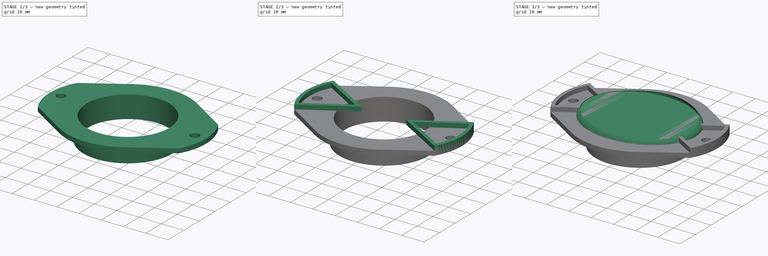
[diagram: build sequence overview — one tinted view per stage of 3, left to right]
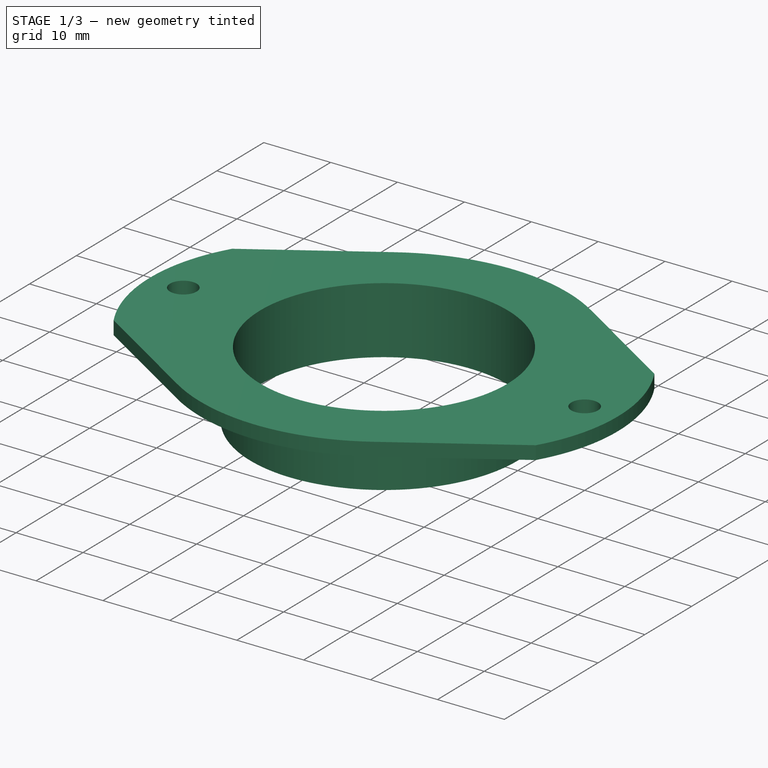
[diagram: stage 1 of 3 — iso view after this stage's code; geometry added in this stage tinted green]
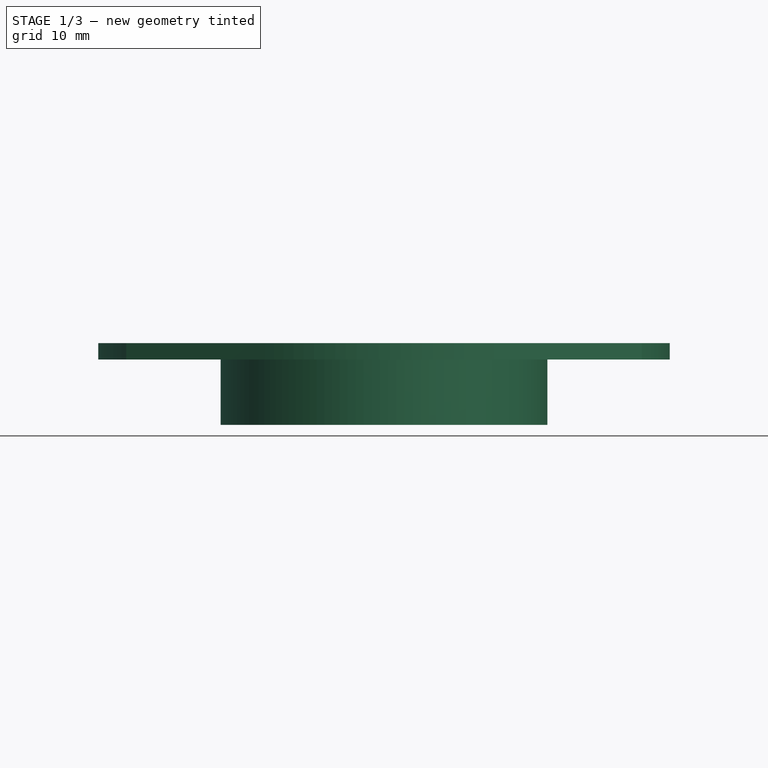
[diagram: stage 1 of 3 — front view after this stage's code; geometry added in this stage tinted green]
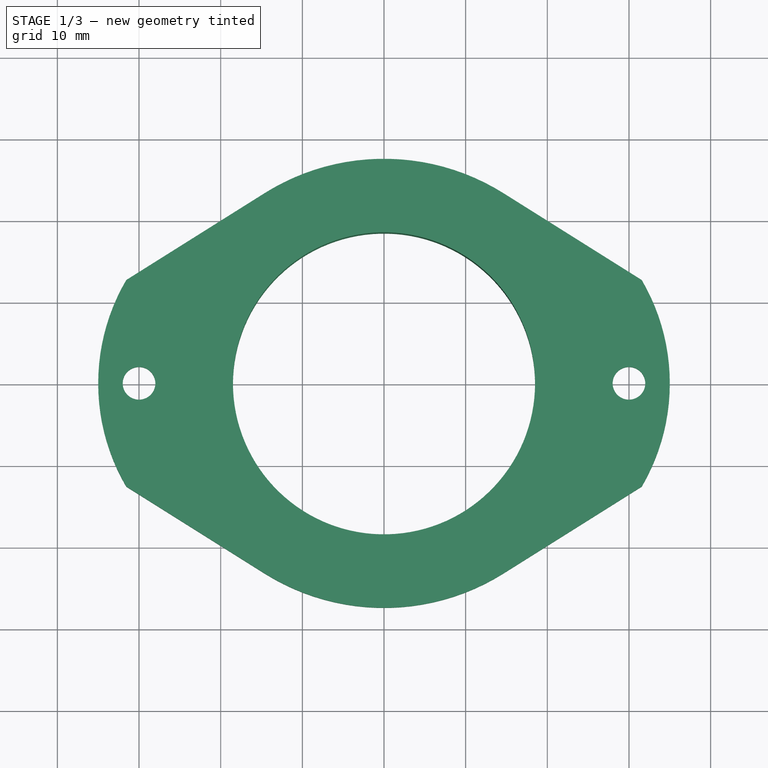
[diagram: stage 1 of 3 — top view after this stage's code; geometry added in this stage tinted green]
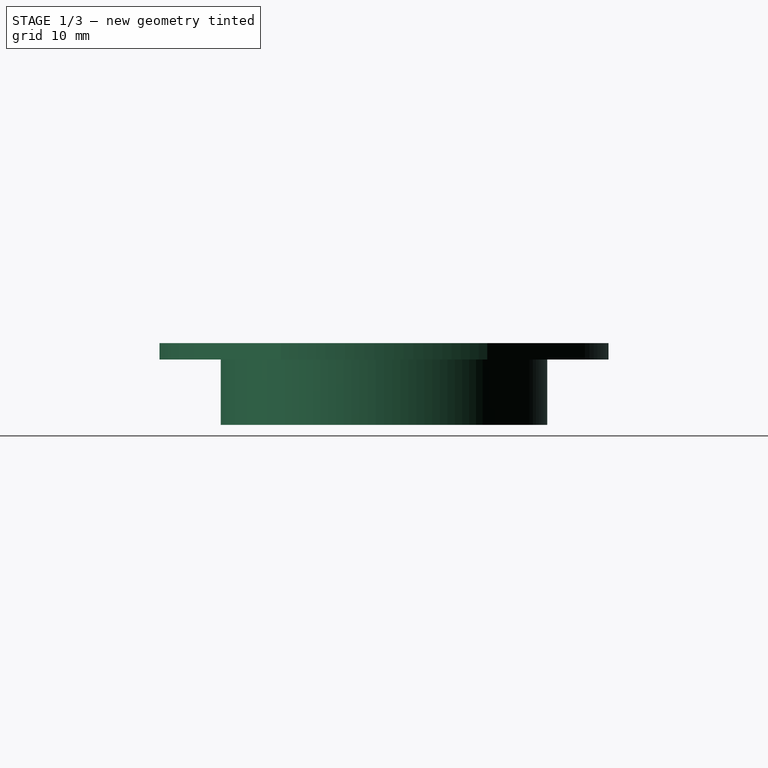
[diagram: stage 1 of 3 — right view after this stage's code; geometry added in this stage tinted green]
FCSTD DOCUMENT  (FreeCAD 1.2R20251216 (Git shallow))
Label: lesson15
License: All rights reserved
objects: Sketcher::SketchObject×3, PartDesign::Pad×3, App::Point×1, PartDesign::AdditiveEllipsoid×1, PartDesign::SubtractiveEllipsoid×1, PartDesign::Body×1
note: 22 computed .brp shape members not serialized (recipe doc carries the construction recipe); baked Part::Feature solids carry a one-line shape summary decoded from their .brp

FEATURE [App::Point] Origin001
  Role = Origin
FEATURE [Sketcher::SketchObject] Sketch
  ArcFitTolerance = 1e-06
  AttachmentSupport = -> [Origin]
  ExternalTypes = [0]
  FullyConstrained = true
  MakeInternals = false
  MapMode = 5
  sketch-geometry (2):
    g0: Circle CenterX=0 CenterY=0 CenterZ=0 NormalX=0 NormalY=0 NormalZ=1 AngleXU=0 Radius=20
    g1: Circle CenterX=0 CenterY=0 CenterZ=0 NormalX=0 NormalY=0 NormalZ=1 AngleXU=0 Radius=18.5
  constraints (4):
    c: Coincident(g0,g-1)
    c: Coincident(g1,g0)
    c: Diameter(g1) = 37
    c: Diameter(g0) = 40
FEATURE [PartDesign::Pad] Pad
  Direction = (0,0,1)
  Length = 8
  Length2 = 10
  Profile = -> Sketch
  ReferenceAxis = -> Sketch [N_Axis]
  Refine = true
  SideType = 0
  Suppressed = false
  Type = 0
  Type2 = 0
FEATURE [Sketcher::SketchObject] Sketch001
  ArcFitTolerance = 1e-06
  AttachmentSupport = -> [Pad]
  ExternalGeometry = -> [Pad]
  ExternalTypes = [0]
  FullyConstrained = true
  MakeInternals = false
  MapMode = 5
  Placement = pos=(0,0,8) rot=(0,0,1;0rad)
  sketch-geometry (13):
    g0: ArcOfCircle CenterX=-1.7e-15 CenterY=0 CenterZ=0 NormalX=0 NormalY=0 NormalZ=1 AngleXU=0 Radius=27.5 StartAngle=1.01002 EndAngle=2.13157
    g1: ArcOfCircle CenterX=0 CenterY=0 CenterZ=0 NormalX=0 NormalY=0 NormalZ=1 AngleXU=0 Radius=27.5 StartAngle=4.15162 EndAngle=5.27316
    g2: ArcOfCircle CenterX=10 CenterY=0 CenterZ=0 NormalX=0 NormalY=0 NormalZ=1 AngleXU=0 Radius=25 StartAngle=5.75258 EndAngle=6.81379
    g3: ArcOfCircle CenterX=-10 CenterY=0 CenterZ=0 NormalX=0 NormalY=0 NormalZ=1 AngleXU=0 Radius=25 StartAngle=2.61099 EndAngle=3.6722
    g4: GeomPoint X=-35 Y=0 Z=0
    g5: GeomPoint X=35 Y=0 Z=0
    g6: LineSegment StartX=-31.5625 StartY=12.6514 StartZ=0 EndX=-14.6256 EndY=23.2882 EndZ=0
    g7: LineSegment StartX=14.6256 StartY=23.2882 StartZ=0 EndX=31.5625 EndY=12.6514 EndZ=0
    g8: LineSegment StartX=31.5625 StartY=-12.6514 StartZ=0 EndX=14.6256 EndY=-23.2882 EndZ=0
    g9: LineSegment StartX=-14.6256 StartY=-23.2882 StartZ=0 EndX=-31.5625 EndY=-12.6514 EndZ=0
    g10: Circle CenterX=-1.7e-15 CenterY=0 CenterZ=0 NormalX=0 NormalY=0 NormalZ=1 AngleXU=0 Radius=18.5
    g11: Circle CenterX=-30 CenterY=0 CenterZ=0 NormalX=0 NormalY=0 NormalZ=1 AngleXU=0 Radius=2
    g12: Circle CenterX=30 CenterY=0 CenterZ=0 NormalX=0 NormalY=0 NormalZ=1 AngleXU=0 Radius=2
  constraints (35):
    c: PointOnObject(g3,g-1)
    c: PointOnObject(g2,g-1)
    c: Coincident(g-1,g1)
    c: PointOnObject(g0,g-1)
    c: PointOnObject(g4,g-1)
    c: PointOnObject(g4,g3)
    c: PointOnObject(g5,g2)
    c: DistanceX(g4,g5) = 70
    c: Coincident(g6,g3)
    c: Coincident(g7,g2)
    c: Coincident(g8,g2)
    c: Coincident(g8,g1)
    c: Coincident(g9,g1)
    c: Coincident(g9,g3)
    c: Distance(g6,g6) = 20
    c: Equal(g6,g7)
    c: Equal(g8,g6)
    c: Equal(g6,g9)
    c: Tangent(g6,g0) = 1.5708
    c: Tangent(g7,g0) = 1.5708
    c: Radius(g0) = 27.5
    c: Vertical(g3,g3)
    c: Vertical(g2,g2)
    c: Radius(g2) = 25
    c: Equal(g0,g1)
    c: Equal(g3,g2)
    c: Symmetric(g5,g4,g1)
    c: Horizontal(g1,g1)
    c: Coincident(g10,g0)
    c: Equal(g10,g-3)
    c: PointOnObject(g11,g-1)
    c: Diameter(g11) = 4
    c: Equal(g11,g12)
    c: Symmetric(g12,g11,g0)
    c: DistanceX(g12,g5) = 5
FEATURE [PartDesign::Pad] Pad001
  BaseFeature = -> Pad
  Direction = (0,0,1)
  Length = 2
  Length2 = 10
  Profile = -> Sketch001
  ReferenceAxis = -> Sketch001 [N_Axis]
  Refine = true
  SideType = 0
  Suppressed = false
  Type = 0
  Type2 = 0
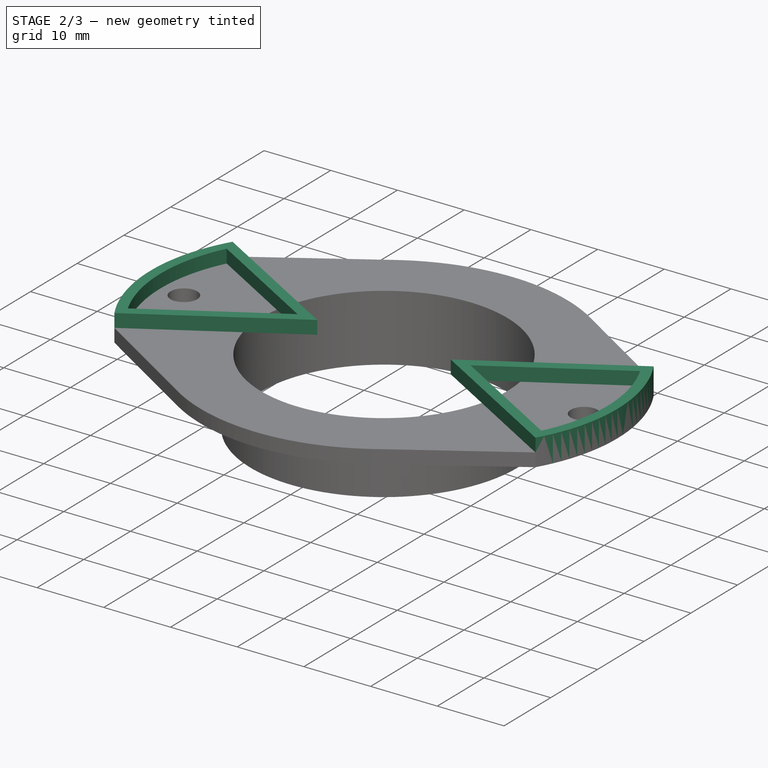
[diagram: stage 2 of 3 — iso view after this stage's code; geometry added in this stage tinted green]
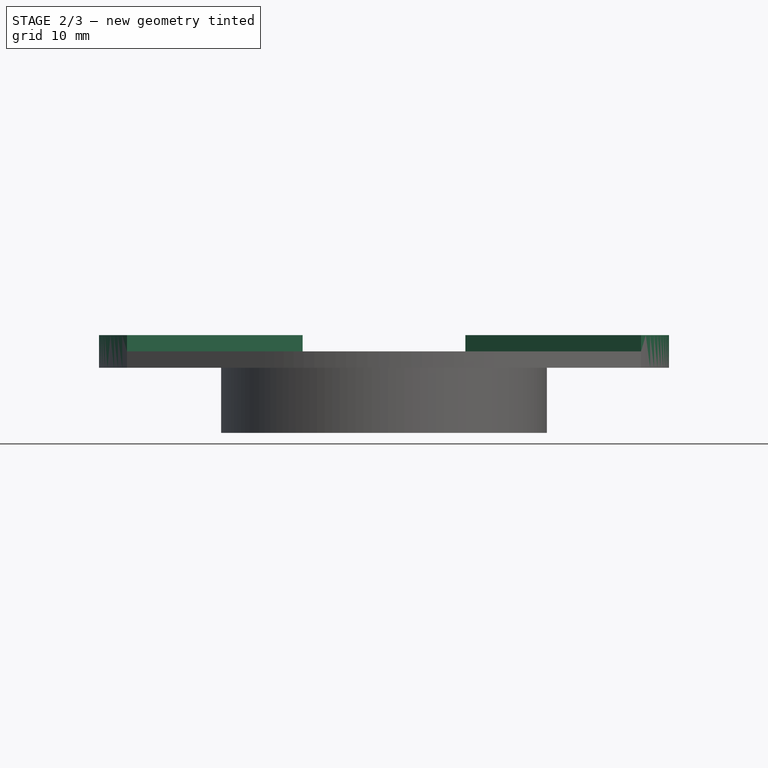
[diagram: stage 2 of 3 — front view after this stage's code; geometry added in this stage tinted green]
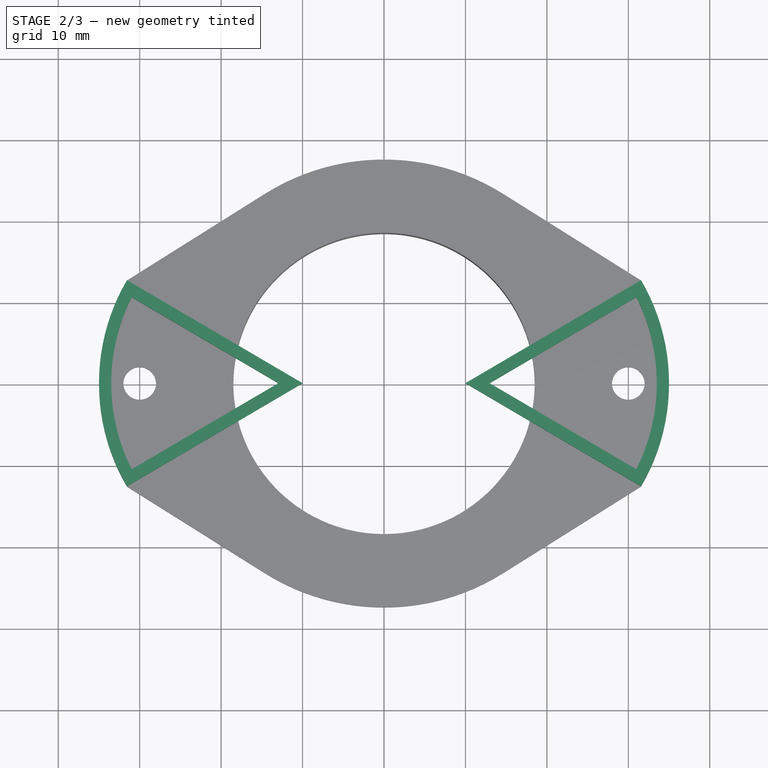
[diagram: stage 2 of 3 — top view after this stage's code; geometry added in this stage tinted green]
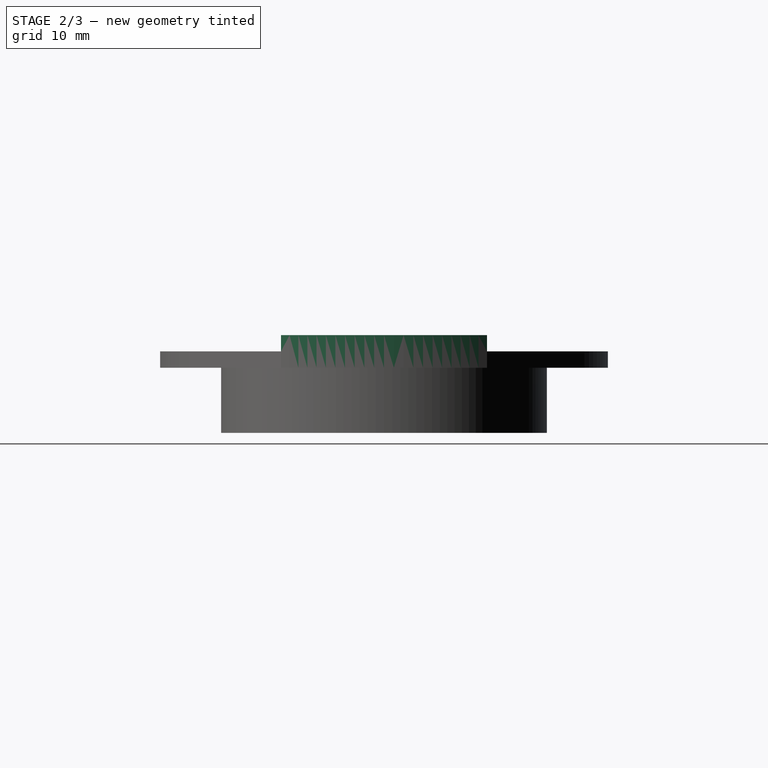
[diagram: stage 2 of 3 — right view after this stage's code; geometry added in this stage tinted green]
FEATURE [Sketcher::SketchObject] Sketch002
  ArcFitTolerance = 1e-06
  AttachmentSupport = -> [Pad001]
  ExternalGeometry = -> [Pad001]
  ExternalTypes = [0,0]
  FullyConstrained = false
  MakeInternals = false
  MapMode = 5
  Placement = pos=(0,0,10) rot=(0,0,1;0rad)
  sketch-geometry (19):
    g0: ArcOfCircle CenterX=-10 CenterY=7e-16 CenterZ=0 NormalX=0 NormalY=0 NormalZ=1 AngleXU=0 Radius=25 StartAngle=2.61099 EndAngle=3.6722
    g1: LineSegment StartX=-31.5625 StartY=12.6514 StartZ=0 EndX=-10 EndY=8e-16 EndZ=0
    g2: LineSegment StartX=-31.5625 StartY=-12.6514 StartZ=0 EndX=-10 EndY=9e-16 EndZ=0
    g3: LineSegment StartX=-30.9865 StartY=-10.5743 StartZ=0 EndX=-12.9641 EndY=7e-16 EndZ=0
    g4: LineSegment StartX=-30.9865 StartY=10.5743 StartZ=0 EndX=-12.9641 EndY=7e-16 EndZ=0
    g5: ArcOfCircle CenterX=-10 CenterY=7e-16 CenterZ=0 NormalX=0 NormalY=0 NormalZ=1 AngleXU=0 Radius=23.5 StartAngle=2.67486 EndAngle=3.60833
    g6: LineSegment [constr] StartX=-11.6437 StartY=0.774745 StartZ=0 EndX=-10.8846 EndY=-0.519005 EndZ=0
    g7: LineSegment [constr] StartX=-3.4094 StartY=-5.60605 StartZ=0 EndX=-2.65032 EndY=-4.3123 EndZ=0
    g8: LineSegment [constr] StartX=13.1714 StartY=-3.91634 StartZ=0 EndX=14.6504 EndY=-4.16631 EndZ=0
    g9: ArcOfCircle CenterX=10 CenterY=-9e-16 CenterZ=0 NormalX=0 NormalY=0 NormalZ=1 AngleXU=0 Radius=25 StartAngle=5.75258 EndAngle=6.81379
    g10: LineSegment StartX=31.5625 StartY=12.6514 StartZ=0 EndX=10 EndY=-2.5e-15 EndZ=0
    g11: LineSegment StartX=31.5625 StartY=-12.6514 StartZ=0 EndX=10 EndY=-2.3e-15 EndZ=0
    g12: LineSegment StartX=30.9865 StartY=-10.5743 StartZ=0 EndX=12.9641 EndY=-2.5e-15 EndZ=0
    g13: LineSegment StartX=30.9865 StartY=10.5743 StartZ=0 EndX=12.9641 EndY=-3.8e-15 EndZ=0
    g14: ArcOfCircle CenterX=10 CenterY=-9e-16 CenterZ=0 NormalX=0 NormalY=0 NormalZ=1 AngleXU=0 Radius=23.5 StartAngle=5.81645 EndAngle=6.74992
    g15: LineSegment [constr] StartX=13.3121 StartY=-0.204187 StartZ=0 EndX=12.553 EndY=-1.49794 EndZ=0
    g16: LineSegment [constr] StartX=5.6499 StartY=-4.29148 StartZ=0 EndX=4.89082 EndY=-2.99773 EndZ=0
    g17: LineSegment [constr] StartX=-13.4977 StartY=-0.331839 StartZ=0 EndX=-14.9975 EndY=-0.35302 EndZ=0
    g18: ArcOfCircle [constr] CenterX=10 CenterY=-3.2e-15 CenterZ=0 NormalX=0 NormalY=0 NormalZ=1 AngleXU=0 Radius=25 StartAngle=5.75258 EndAngle=6.81379
  constraints (53):
    c: Coincident(g0,g-3)
    c: Coincident(g0,g-3)
    c: Coincident(g1,g0)
    c: Coincident(g1,g-3)
    c: Coincident(g2,g0)
    c: Coincident(g2,g1)
    c: Equal(g0,g-3)
    c: Coincident(g3,g4)
    c: Coincident(g3,g5)
    c: Coincident(g4,g5)
    c: Perpendicular(g6,g3)
    c: PointOnObject(g6,g3)
    c: PointOnObject(g6,g2)
    c: Perpendicular(g7,g4)
    c: PointOnObject(g7,g4)
    c: PointOnObject(g7,g1)
    c: Perpendicular(g8,g5)
    c: PointOnObject(g8,g5)
    c: PointOnObject(g8,g0)
    c: Coincident(g5,g0)
    c: Parallel(g3,g2)
    c: Parallel(g4,g1)
    c: Equal(g7,g6)
    c: Equal(g8,g6)
    c: Distance(g6) = 1.5
    c: Coincident(g9,g18)
    c: Coincident(g9,g18)
    c: Coincident(g10,g9)
    c: Coincident(g10,g18)
    c: Coincident(g11,g9)
    c: Coincident(g11,g10)
    c: Equal(g9,g18)
    c: Coincident(g12,g13)
    c: Coincident(g12,g14)
    c: Coincident(g13,g14)
    c: Perpendicular(g15,g12)
    c: PointOnObject(g15,g12)
    c: PointOnObject(g15,g11)
    c: Perpendicular(g16,g13)
    c: PointOnObject(g16,g13)
    c: PointOnObject(g16,g10)
    c: Perpendicular(g17,g14)
    c: PointOnObject(g17,g14)
    c: PointOnObject(g17,g9)
    c: Coincident(g14,g9)
    c: Parallel(g12,g11)
    c: Parallel(g13,g10)
    c: Equal(g16,g15)
    c: Equal(g17,g15)
    c: Distance(g15) = 1.5
    c: Coincident(g9,g-4)
    c: Coincident(g9,g-4)
    c: Coincident(g9,g-4)
FEATURE [PartDesign::Pad] Pad002
  BaseFeature = -> Pad001
  Direction = (0,0,1)
  Length = 2
  Length2 = 10
  Profile = -> Sketch002
  ReferenceAxis = -> Sketch002 [N_Axis]
  Refine = true
  SideType = 0
  Suppressed = false
  Type = 0
  Type2 = 0
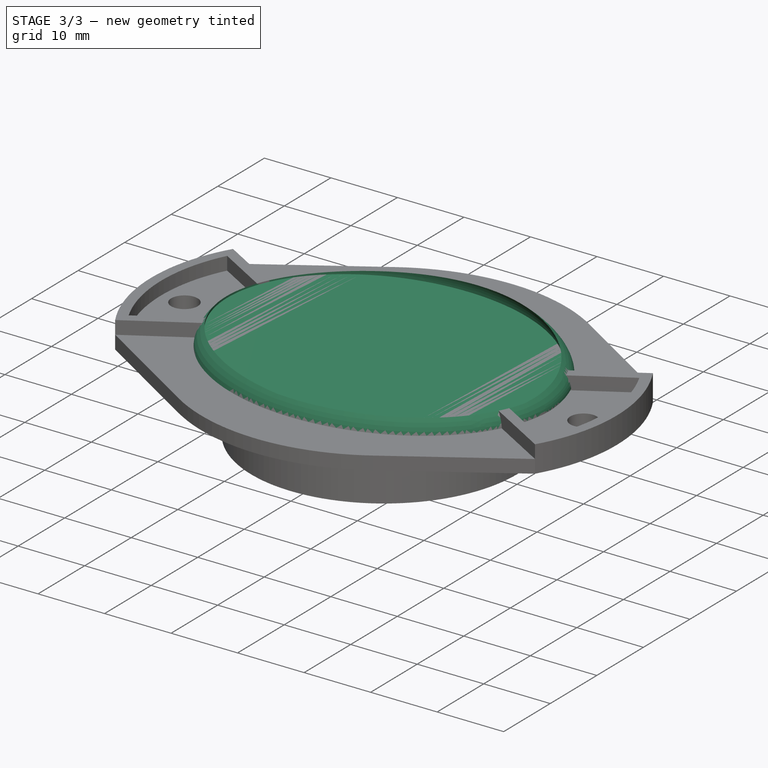
[diagram: stage 3 of 3 — iso view after this stage's code; geometry added in this stage tinted green]
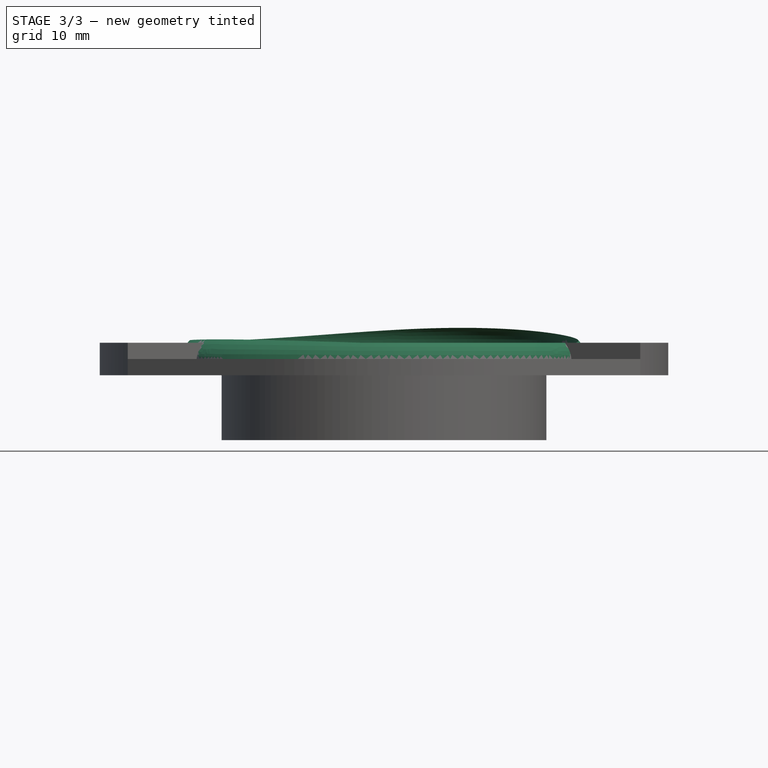
[diagram: stage 3 of 3 — front view after this stage's code; geometry added in this stage tinted green]
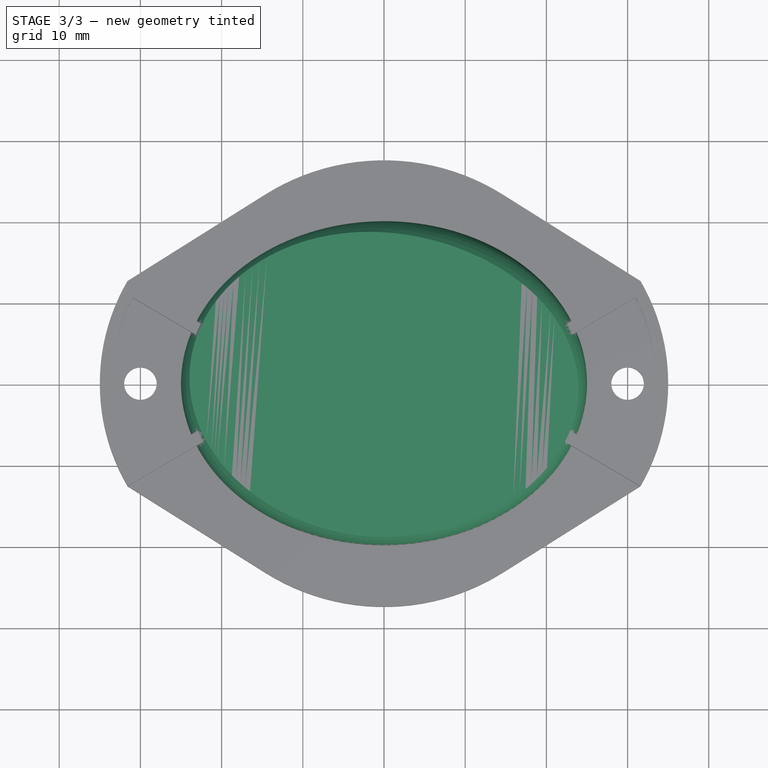
[diagram: stage 3 of 3 — top view after this stage's code; geometry added in this stage tinted green]
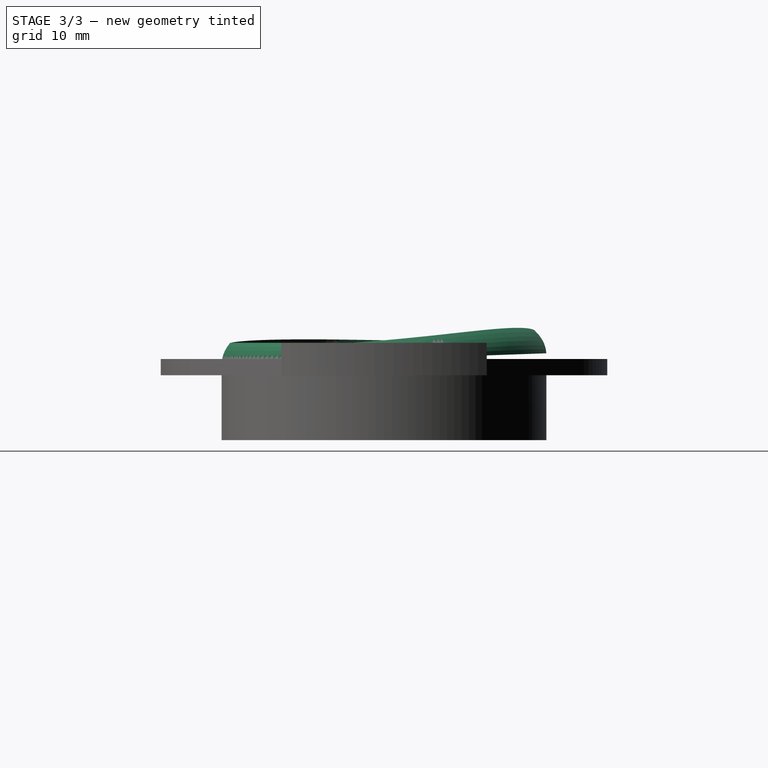
[diagram: stage 3 of 3 — right view after this stage's code; geometry added in this stage tinted green]
FEATURE [PartDesign::AdditiveEllipsoid] Ellipsoid
  Angle1 = 0
  Angle2 = 90
  Angle3 = 360
  AttacherType = Attacher::AttachEngine3D
  AttachmentOffset = pos=(0,0,-2) rot=(0,-1,0;0.034907rad)
  AttachmentSupport = -> [Pad002]
  BaseFeature = -> Pad002
  MapMode = 45
  Placement = pos=(0,-6.8e-15,10) rot=(0.01745,-0.01745,0.999695;1.5711rad)
  Radius1 = 8
  Radius2 = 20
  Radius3 = 25
  Refine = true
  Suppressed = false
FEATURE [PartDesign::SubtractiveEllipsoid] Ellipsoid001
  Angle1 = 0
  Angle2 = 90
  Angle3 = 360
  AttacherType = Attacher::AttachEngine3D
  AttachmentOffset = pos=(0,0,0) rot=(0,0,-1;0.069813rad)
  AttachmentSupport = -> [Ellipsoid]
  BaseFeature = -> Ellipsoid
  MapMode = 45
  Placement = pos=(0,-6.9e-15,12) rot=(0,0,1;1.50098rad)
  Radius1 = 7
  Radius2 = 19
  Radius3 = 24
  Refine = true
  Suppressed = false
FEATURE [PartDesign::Body] Body
  AllowCompound = true
  Group = -> [Sketch,Pad,Sketch001,Pad001,Sketch002,Pad002,Ellipsoid,Ellipsoid001]
  Origin = -> Origin
  Tip = -> Ellipsoid001
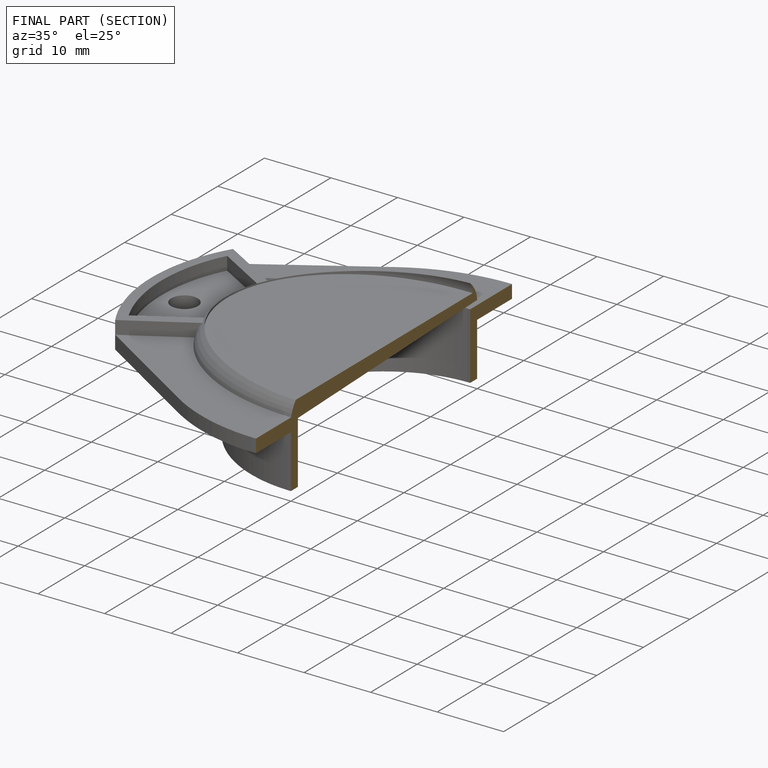
[diagram: finished part — half-section view (interior)]
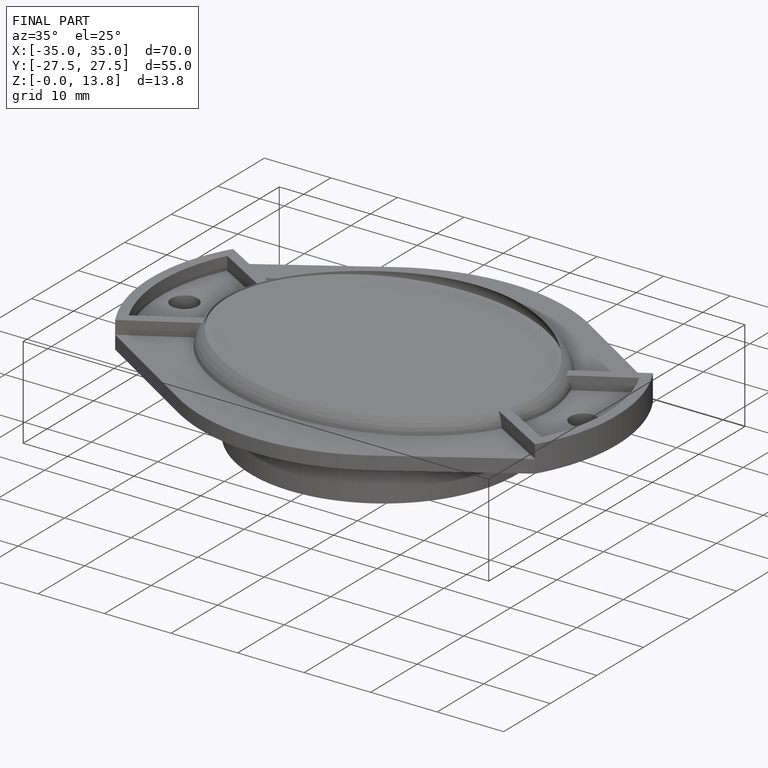
[diagram: finished part — iso view with bounding-box wireframe]
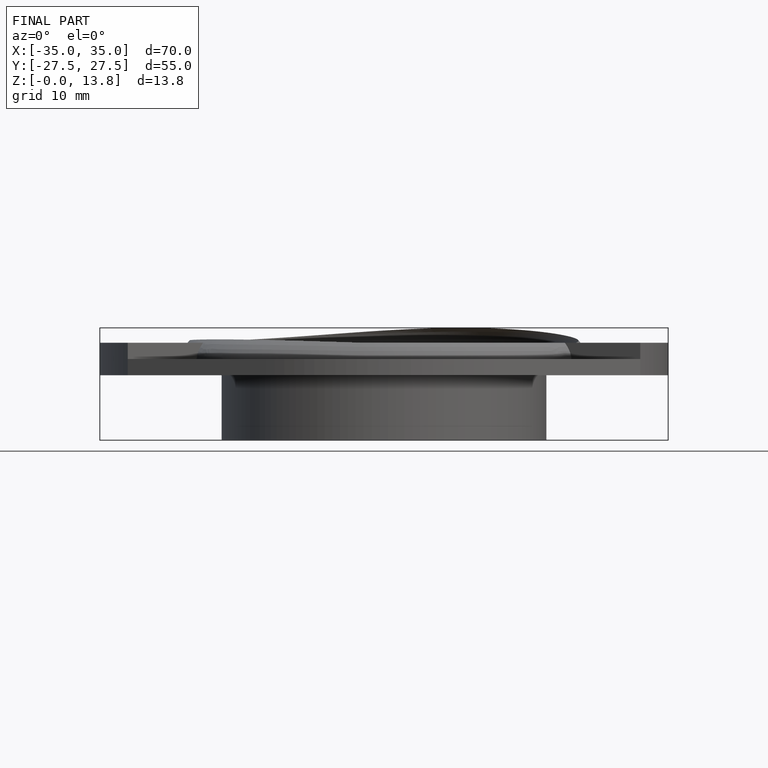
[diagram: finished part — front view with bounding-box wireframe]
